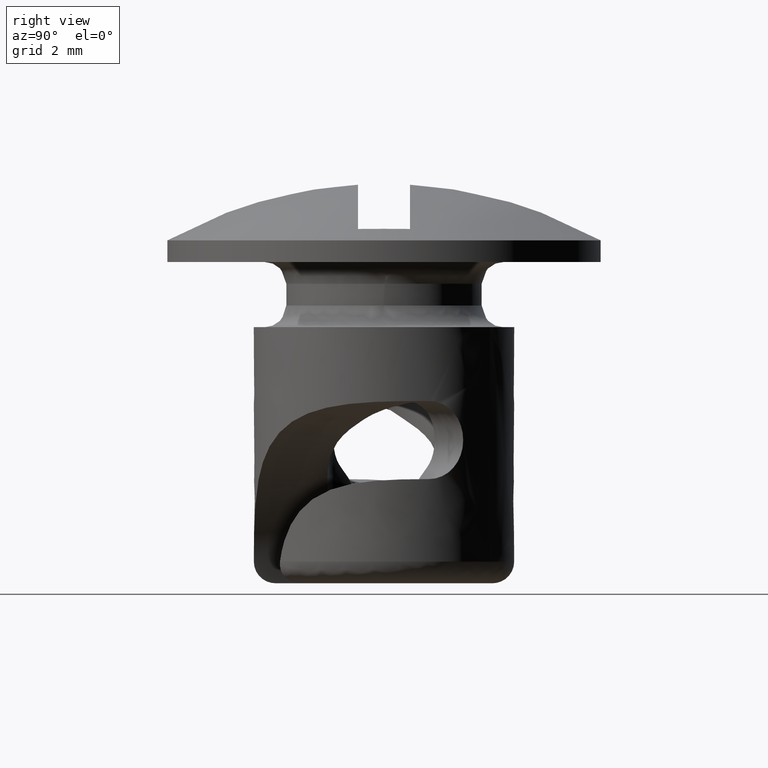
[diagram: clean part render]
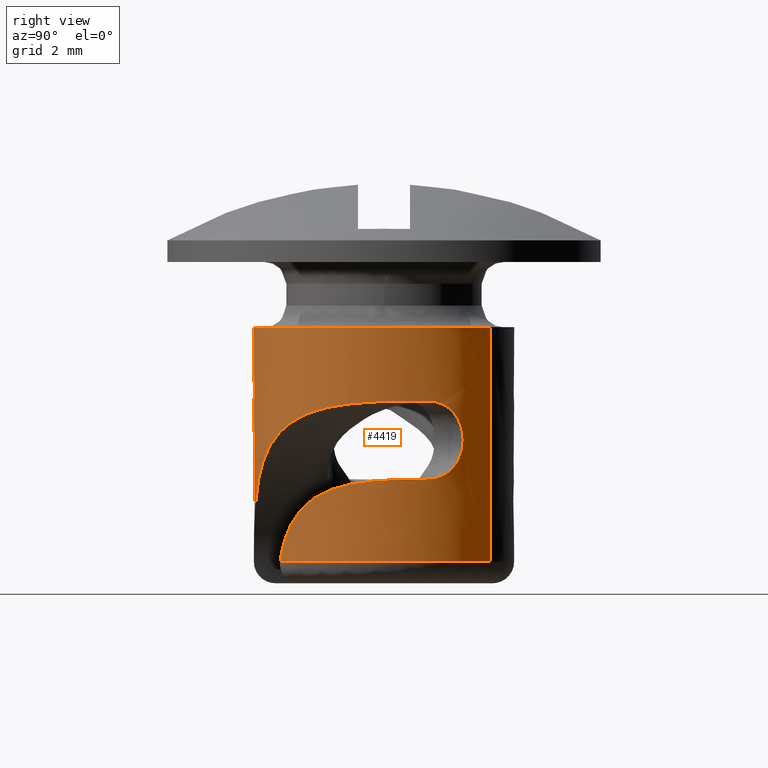
[diagram: same view with one face highlighted and labeled with its STEP entity id]
A machine part, right view. The second image highlights one B-rep face of the part: STEP entity #4419.
In plain terms, the highlighted face is a freeform B-spline surface patch.
Its self-contained STEP definition (entity closure, byte-faithful):
#1559=CARTESIAN_POINT('',(2.819077636768695,1.026061049781646,-5.0));
#1560=VERTEX_POINT('',#1559);
#3477=CARTESIAN_POINT('',(2.822162057853675,1.014812978951636,-3.200050929031310));
#3478=VERTEX_POINT('',#3477);
#3479=CARTESIAN_POINT('',(2.819077636768695,1.026061049781646,-5.0));
#3480=CARTESIAN_POINT('',(2.805089707556622,1.064494751141424,-5.000001608500657));
#3481=CARTESIAN_POINT('',(2.771323841835470,1.151126967242520,-4.993702264664626));
#3482=CARTESIAN_POINT('',(2.716545788220696,1.274219728714892,-4.963271549040200));
#3483=CARTESIAN_POINT('',(2.651683299628141,1.404301030033810,-4.904979574818277));
#3484=CARTESIAN_POINT('',(2.592902173878853,1.510045261881668,-4.830684506612701));
#3485=CARTESIAN_POINT('',(2.551700123374129,1.577879598927982,-4.763013896567219));
#3486=CARTESIAN_POINT('',(2.514877161120972,1.636150239348090,-4.695223108397808));
#3487=CARTESIAN_POINT('',(2.467353126969232,1.708273305771514,-4.592337323628366));
#3488=CARTESIAN_POINT('',(2.420012824364833,1.774445168648228,-4.440400902279741));
#3489=CARTESIAN_POINT('',(2.395461050712548,1.806758345195512,-4.304623579328469));
#3490=CARTESIAN_POINT('',(2.383877158495853,1.821548287059766,-4.198364986908852));
#3491=CARTESIAN_POINT('',(2.378625827753777,1.827914824030106,-4.071884917941570));
#3492=CARTESIAN_POINT('',(2.388618294993632,1.815657933500104,-3.938149895239259));
#3493=CARTESIAN_POINT('',(2.411518387104773,1.785551417569477,-3.805692670379122));
#3494=CARTESIAN_POINT('',(2.437534006666094,1.750046207625077,-3.702856912495972));
#3495=CARTESIAN_POINT('',(2.479227720912613,1.690320456124905,-3.581475407610075));
#3496=CARTESIAN_POINT('',(2.516273118512928,1.634157486421815,-3.501381435869568));
#3497=CARTESIAN_POINT('',(2.567647802242197,1.552360778452465,-3.408705698739099));
#3498=CARTESIAN_POINT('',(2.612988632348995,1.475087458297879,-3.341130640104060));
#3499=CARTESIAN_POINT('',(2.674711552363569,1.358057497476310,-3.272573092795271));
#3500=CARTESIAN_POINT('',(2.726640417651378,1.250618634921457,-3.229756567736855));
#3501=CARTESIAN_POINT('',(2.777595710894450,1.133198959310370,-3.204214074684800));
#3502=CARTESIAN_POINT('',(2.808324446855738,1.053297822363762,-3.199520065333239));
#3503=CARTESIAN_POINT('',(2.822162057853675,1.014812978951636,-3.200050929031310));
#3504=B_SPLINE_CURVE_WITH_KNOTS('',3,(#3479,#3480,#3481,#3482,#3483,#3484,#3485,#3486,#3487,#3488,#3489,#3490,#3491,#3492,#3493,#3494,#3495,#3496,#3497,#3498,#3499,#3500,#3501,#3502,#3503),.UNSPECIFIED.,.F.,.U.,(4,1,1,1,1,1,1,1,1,1,1,1,1,1,1,1,1,1,1,1,1,1,4),(-0.000002334073199,0.122699478811012,0.278864347968155,0.412719390771784,0.591193776172163,0.702740166853619,0.725051060126712,0.881216531364857,1.104308379367514,1.238163332889884,1.305091684766867,1.427793136751901,1.617423336469361,1.706660025095906,1.840515090806797,1.952061157832615,2.130535898064169,2.152846803083478,2.353630053803587,2.465176417455990,2.599031681306262,2.732887251959749,2.855589061643720),.UNSPECIFIED.);
#3505=EDGE_CURVE('',#1560,#3478,#3504,.T.);
#3817=CARTESIAN_POINT('',(1.803708136351060,-2.397214416538705,-6.900000000000000));
#3818=VERTEX_POINT('',#3817);
#3819=CARTESIAN_POINT('',(2.819077636768695,1.026061049781646,-5.0));
#3820=CARTESIAN_POINT('',(2.886356603573274,0.841213734128820,-5.000000000000036));
#3821=CARTESIAN_POINT('',(2.934522483304091,0.652853246726990,-5.001579407789944));
#3822=CARTESIAN_POINT('',(2.979256139151775,0.365298164546832,-5.008225596421286));
#3823=CARTESIAN_POINT('',(2.989547928123367,0.268605432291502,-5.011196365280373));
#3824=CARTESIAN_POINT('',(2.997904499401628,0.122290783251686,-5.017444517269398));
#3825=CARTESIAN_POINT('',(2.999507915362322,0.073182875880846,-5.019836233912159));
#3826=CARTESIAN_POINT('',(3.000297524352672,-0.024864291798660,-5.025341262339212));
#3827=CARTESIAN_POINT('',(2.999489415344910,-0.073664599775390,-5.028445241819856));
#3828=CARTESIAN_POINT('',(2.989585544716179,-0.316527861716279,-5.046063818390142));
#3829=CARTESIAN_POINT('',(2.963014038963404,-0.507222868454152,-5.066642919591585));
#3830=CARTESIAN_POINT('',(2.907623242576440,-0.740285439081035,-5.108027236372723));
#3831=CARTESIAN_POINT('',(2.895429564977406,-0.786629617891571,-5.117102833234489));
#3832=CARTESIAN_POINT('',(2.868815224672079,-0.878747818306919,-5.137114471866052));
#3833=CARTESIAN_POINT('',(2.854335564874750,-0.924683641008671,-5.148096461775690));
#3834=CARTESIAN_POINT('',(2.808116929828628,-1.059983358285067,-5.183849358916186));
#3835=CARTESIAN_POINT('',(2.773593729029997,-1.147003528669873,-5.211420620454152));
#3836=CARTESIAN_POINT('',(2.698216136934144,-1.314560362586616,-5.275589184373430));
#3837=CARTESIAN_POINT('',(2.657357799096591,-1.395097124678617,-5.312181741426163));
#3838=CARTESIAN_POINT('',(2.592150484734753,-1.510866466441011,-5.375218391100979));
#3839=CARTESIAN_POINT('',(2.569664287447284,-1.548768247009039,-5.397695125064388));
#3840=CARTESIAN_POINT('',(2.524111362143262,-1.621949279300896,-5.445036843312888));
#3841=CARTESIAN_POINT('',(2.501055969677411,-1.657231384180050,-5.469882084717972));
#3842=CARTESIAN_POINT('',(2.431388940697128,-1.759299609428942,-5.548051656738539));
#3843=CARTESIAN_POINT('',(2.384276878307416,-1.822312950115050,-5.605004506428045));
#3844=CARTESIAN_POINT('',(2.313905965003131,-1.909774689661077,-5.698205305915302));
#3845=CARTESIAN_POINT('',(2.290498175043333,-1.937750899314416,-5.730568629494470));
#3846=CARTESIAN_POINT('',(2.243999605713607,-1.991413118172079,-5.797992734738725));
#3847=CARTESIAN_POINT('',(2.220820638779867,-2.017192649402142,-5.833196815526348));
#3848=CARTESIAN_POINT('',(2.107429358921045,-2.139277777208459,-6.014411494846266));
#3849=CARTESIAN_POINT('',(2.025546708879180,-2.214777402700954,-6.174311198092485));
#3850=CARTESIAN_POINT('',(1.940407054768486,-2.288083338220025,-6.392740767064073));
#3851=CARTESIAN_POINT('',(1.924217066557559,-2.301688327642082,-6.437460783887395));
#3852=CARTESIAN_POINT('',(1.894124773597189,-2.326514951355478,-6.527542543069951));
#3853=CARTESIAN_POINT('',(1.880163499401287,-2.337788469375825,-6.573041659788888));
#3854=CARTESIAN_POINT('',(1.841602327251384,-2.368455132860239,-6.710881092269755));
#3855=CARTESIAN_POINT('',(1.820318218523813,-2.384716685775133,-6.804557844307031));
#3856=CARTESIAN_POINT('',(1.803708136351060,-2.397214416538705,-6.900000000000000));
#3857=B_SPLINE_CURVE_WITH_KNOTS('',3,(#3819,#3820,#3821,#3822,#3823,#3824,#3825,#3826,#3827,#3828,#3829,#3830,#3831,#3832,#3833,#3834,#3835,#3836,#3837,#3838,#3839,#3840,#3841,#3842,#3843,#3844,#3845,#3846,#3847,#3848,#3849,#3850,#3851,#3852,#3853,#3854,#3855,#3856),.UNSPECIFIED.,.F.,.U.,(4,2,2,2,2,2,2,2,2,2,2,2,2,2,2,2,2,2,4),(0.0,0.125000000000000,0.187500000000001,0.218750000000001,0.250000000000001,0.375000000000001,0.406250000000001,0.437500000000001,0.500000000000002,0.562500000000002,0.593750000000002,0.625000000000002,0.687500000000002,0.718750000000002,0.750000000000002,0.875000000000001,0.906250000000001,0.937500000000001,1.0),.UNSPECIFIED.);
#3858=EDGE_CURVE('',#1560,#3818,#3857,.T.);
#3933=CARTESIAN_POINT('',(1.743878512532106,2.441083311468252,-6.899999999999999));
#3934=VERTEX_POINT('',#3933);
#3948=CARTESIAN_POINT('',(1.803708136351057,-2.397214416538704,-6.900000000000000));
#3949=CARTESIAN_POINT('',(3.555889252561384,-1.078841177221830,-6.900000000000000));
#3950=CARTESIAN_POINT('',(2.831638270195144,0.990870681151811,-6.900000000000000));
#3951=CARTESIAN_POINT('',(2.517581247775023,1.888360031300522,-6.900000000000000));
#3952=CARTESIAN_POINT('',(1.743878512532107,2.441083311468252,-6.900000000000000));
#3960=(BOUNDED_CURVE()B_SPLINE_CURVE(2,(#3948,#3949,#3950,#3951,#3952),.UNSPECIFIED.,.F.,.U.)B_SPLINE_CURVE_WITH_KNOTS((3,2,3),(0.0,0.500000000000000,0.743372198286856),.UNSPECIFIED.)CURVE()GEOMETRIC_REPRESENTATION_ITEM()RATIONAL_B_SPLINE_CURVE((1.0,0.807331664785345,1.0,0.906219767437081,0.903733540292923))REPRESENTATION_ITEM(''));
#3961=EDGE_CURVE('',#3818,#3934,#3960,.T.);
#4045=CARTESIAN_POINT('',(3.0,0.0,-1.500000000000055));
#4046=VERTEX_POINT('',#4045);
#4047=CARTESIAN_POINT('',(1.743877725871815,2.441083873447854,-1.500000000000055));
#4048=VERTEX_POINT('',#4047);
#4049=CARTESIAN_POINT('',(3.0,0.0,-1.500000000000055));
#4050=CARTESIAN_POINT('',(2.999999999999953,1.543726892538668,-1.500000000000055));
#4051=CARTESIAN_POINT('',(1.743877725871815,2.441083873447854,-1.500000000000055));
#4059=(BOUNDED_CURVE()B_SPLINE_CURVE(2,(#4049,#4050,#4051),.UNSPECIFIED.,.F.,.U.)B_SPLINE_CURVE_WITH_KNOTS((3,3),(0.0,0.149965649778533),.UNSPECIFIED.)CURVE()GEOMETRIC_REPRESENTATION_ITEM()RATIONAL_B_SPLINE_CURVE((1.0,0.824304312499658,0.859395168513515))REPRESENTATION_ITEM(''));
#4060=EDGE_CURVE('',#4046,#4048,#4059,.T.);
#4079=CARTESIAN_POINT('',(-1.743877725871815,-2.441083873447854,-1.500000000000056));
#4080=VERTEX_POINT('',#4079);
#4094=CARTESIAN_POINT('',(-1.743877725871815,-2.441083873447854,-1.500000000000056));
#4095=CARTESIAN_POINT('',(-0.961505703513444,-2.999999999999880,-1.500000000000056));
#4096=CARTESIAN_POINT('',(7.163261E-014,-2.999999999999901,-1.500000000000056));
#4097=CARTESIAN_POINT('',(3.000000000000025,-2.999999999999966,-1.500000000000055));
#4098=CARTESIAN_POINT('',(3.0,0.0,-1.500000000000055));
#4106=(BOUNDED_CURVE()B_SPLINE_CURVE(2,(#4094,#4095,#4096,#4097,#4098),.UNSPECIFIED.,.F.,.U.)B_SPLINE_CURVE_WITH_KNOTS((3,2,3),(0.649965649778533,0.750000000000000,1.0),.UNSPECIFIED.)CURVE()GEOMETRIC_REPRESENTATION_ITEM()RATIONAL_B_SPLINE_CURVE((0.859395168513515,0.882802468686890,1.0,0.707106781186548,1.0))REPRESENTATION_ITEM(''));
#4107=EDGE_CURVE('',#4080,#4046,#4106,.T.);
#4318=CARTESIAN_POINT('',(-1.743878526417173,-2.441083301548938,-7.034999999999999));
#4319=CARTESIAN_POINT('',(0.697204775131765,-4.184961827966111,-7.034999999999999));
#4320=CARTESIAN_POINT('',(2.441083301548938,-1.743878526417173,-7.034999999999999));
#4321=CARTESIAN_POINT('',(4.184961827966111,0.697204775131765,-7.034999999999999));
#4322=CARTESIAN_POINT('',(1.743878526417173,2.441083301548938,-7.034999999999999));
#4323=CARTESIAN_POINT('',(-1.743878526417173,-2.441083301548938,-1.361625000000055));
#4324=CARTESIAN_POINT('',(0.697204775131765,-4.184961827966111,-1.361625000000055));
#4325=CARTESIAN_POINT('',(2.441083301548938,-1.743878526417173,-1.361625000000055));
#4326=CARTESIAN_POINT('',(4.184961827966111,0.697204775131765,-1.361625000000055));
#4327=CARTESIAN_POINT('',(1.743878526417173,2.441083301548938,-1.361625000000055));
#4335=(BOUNDED_SURFACE()B_SPLINE_SURFACE(2,1,((#4318,#4323),(#4319,#4324),(#4320,#4325),(#4321,#4326),(#4322,#4327)),.UNSPECIFIED.,.F.,.F.,.U.)B_SPLINE_SURFACE_WITH_KNOTS((3,2,3),(2,2),(0.0,4.970562748477139,9.941125496954278),(0.0,5.673374999999944),.UNSPECIFIED.)GEOMETRIC_REPRESENTATION_ITEM()RATIONAL_B_SPLINE_SURFACE(((1.0,1.0),(0.707106781186548,0.707106781186548),(1.0,1.0),(0.707106781186548,0.707106781186548),(1.0,1.0)))REPRESENTATION_ITEM('')SURFACE());
#4336=ORIENTED_EDGE('',*,*,#4107,.F.);
#4337=CARTESIAN_POINT('',(-1.743878512532106,-2.441083311468252,-6.899999999999999));
#4338=VERTEX_POINT('',#4337);
#4339=CARTESIAN_POINT('',(-1.743878512532106,-2.441083311468252,-6.899999999999999));
#4340=CARTESIAN_POINT('',(-1.743877725871815,-2.441083873447854,-1.500000000000056));
#4341=QUASI_UNIFORM_CURVE('',1,(#4339,#4340),.UNSPECIFIED.,.F.,.U.);
#4342=EDGE_CURVE('',#4338,#4080,#4341,.T.);
#4343=ORIENTED_EDGE('',*,*,#4342,.F.);
#4344=CARTESIAN_POINT('',(0.084513880760828,-2.998809331044365,-6.900000000000000));
#4345=VERTEX_POINT('',#4344);
#4346=CARTESIAN_POINT('',(-1.743878512532108,-2.441083311468253,-6.900000000000000));
#4347=CARTESIAN_POINT('',(-0.923410453437957,-3.027215137347076,-6.900000000000000));
#4348=CARTESIAN_POINT('',(0.084513880760826,-2.998809331044364,-6.900000000000000));
#4356=(BOUNDED_CURVE()B_SPLINE_CURVE(2,(#4346,#4347,#4348),.UNSPECIFIED.,.F.,.U.)B_SPLINE_CURVE_WITH_KNOTS((3,3),(0.743372198286852,1.0),.UNSPECIFIED.)CURVE()GEOMETRIC_REPRESENTATION_ITEM()RATIONAL_B_SPLINE_CURVE((0.903733540292922,0.901111897348261,1.0))REPRESENTATION_ITEM(''));
#4357=EDGE_CURVE('',#4338,#4345,#4356,.T.);
#4358=ORIENTED_EDGE('',*,*,#4357,.T.);
#4359=CARTESIAN_POINT('',(2.822162057853675,1.014812978951636,-3.200050929031310));
#4360=CARTESIAN_POINT('',(2.875856112348836,0.865265143103996,-3.200088019722176));
#4361=CARTESIAN_POINT('',(2.917051673132705,0.713422657907655,-3.200743004186850));
#4362=CARTESIAN_POINT('',(2.975427922177162,0.405337075507465,-3.203923010432609));
#4363=CARTESIAN_POINT('',(2.992607327426793,0.249093669236041,-3.206442102980794));
#4364=CARTESIAN_POINT('',(2.999735394837935,0.011330851011727,-3.213153793434045));
#4365=CARTESIAN_POINT('',(2.998952030606517,-0.068104431955525,-3.215886928658795));
#4366=CARTESIAN_POINT('',(2.991220736470682,-0.225354151890891,-3.222607419216372));
#4367=CARTESIAN_POINT('',(2.984284100199546,-0.303462786046158,-3.226602378149792));
#4368=CARTESIAN_POINT('',(2.954438573700145,-0.536224758828806,-3.241066453046298));
#4369=CARTESIAN_POINT('',(2.922542730367570,-0.689325257417642,-3.253965218412358));
#4370=CARTESIAN_POINT('',(2.856500234603436,-0.915609311440732,-3.281249180967058));
#4371=CARTESIAN_POINT('',(2.831336787662116,-0.990661878628460,-3.291725415248663));
#4372=CARTESIAN_POINT('',(2.775971816220372,-1.136634830036721,-3.315485230954196));
#4373=CARTESIAN_POINT('',(2.745684318730197,-1.207911716533011,-3.328803191879841));
#4374=CARTESIAN_POINT('',(2.647423547636809,-1.416659631467223,-3.373744406341297));
#4375=CARTESIAN_POINT('',(2.572075229240215,-1.549068379827970,-3.410321451825553));
#4376=CARTESIAN_POINT('',(2.445414293708030,-1.737328702749845,-3.478283855320797));
#4377=CARTESIAN_POINT('',(2.400667471892101,-1.798638102973226,-3.503279799933900));
#4378=CARTESIAN_POINT('',(2.308540487012882,-1.915517673955297,-3.557217441520223));
#4379=CARTESIAN_POINT('',(2.261073674816962,-1.971271897221461,-3.586194035547842));
#4380=CARTESIAN_POINT('',(2.115117811564925,-2.130885219885776,-3.679498272050187));
#4381=CARTESIAN_POINT('',(2.013082954080901,-2.227112832819078,-3.750187442462117));
#4382=CARTESIAN_POINT('',(1.855219237499745,-2.357375734254972,-3.870524845553103));
#4383=CARTESIAN_POINT('',(1.801699198744420,-2.398486494782225,-3.913121159863287));
#4384=CARTESIAN_POINT('',(1.695335344231038,-2.474878795000346,-4.001715864460127));
#4385=CARTESIAN_POINT('',(1.642259457085096,-2.510364055008644,-4.047882426416464));
#4386=CARTESIAN_POINT('',(1.483839979004725,-2.609461869698282,-4.192010701316138));
#4387=CARTESIAN_POINT('',(1.379306149480096,-2.665738946326369,-4.295588119762736));
#4388=CARTESIAN_POINT('',(1.225935935452649,-2.737994835438410,-4.462490916648305));
#4389=CARTESIAN_POINT('',(1.175594715019234,-2.759938992371656,-4.519838683677613));
#4390=CARTESIAN_POINT('',(1.077653980129830,-2.799686161330205,-4.636769181444888));
#4391=CARTESIAN_POINT('',(1.029898718034859,-2.817562767270724,-4.696519209970549));
#4392=CARTESIAN_POINT('',(0.890473701844873,-2.866022598199173,-4.879579496301058));
#4393=CARTESIAN_POINT('',(0.802634560492292,-2.891459750296393,-5.006687629530479));
#4394=CARTESIAN_POINT('',(0.679462369882968,-2.922000541619209,-5.205002151481348));
#4395=CARTESIAN_POINT('',(0.639838314599504,-2.930904808041608,-5.272385451665256));
#4396=CARTESIAN_POINT('',(0.563644669098669,-2.946544733937469,-5.409755569905443));
#4397=CARTESIAN_POINT('',(0.526993053949266,-2.953291497065842,-5.479926199667167));
#4398=CARTESIAN_POINT('',(0.423006566265977,-2.970645426171623,-5.692189593258513));
#4399=CARTESIAN_POINT('',(0.361317228347723,-2.978471273026417,-5.836495702580481));
#4400=CARTESIAN_POINT('',(0.253764331408737,-2.989614429484102,-6.130780027083236));
#4401=CARTESIAN_POINT('',(0.207900411353586,-2.992926809627867,-6.280758307729636));
#4402=CARTESIAN_POINT('',(0.133048135966136,-2.997237335206986,-6.586666678292248));
#4403=CARTESIAN_POINT('',(0.104054341967464,-2.998236659839892,-6.743180701552113));
#4404=CARTESIAN_POINT('',(0.084513880760828,-2.998809331044365,-6.900000000000000));
#4405=B_SPLINE_CURVE_WITH_KNOTS('',3,(#4359,#4360,#4361,#4362,#4363,#4364,#4365,#4366,#4367,#4368,#4369,#4370,#4371,#4372,#4373,#4374,#4375,#4376,#4377,#4378,#4379,#4380,#4381,#4382,#4383,#4384,#4385,#4386,#4387,#4388,#4389,#4390,#4391,#4392,#4393,#4394,#4395,#4396,#4397,#4398,#4399,#4400,#4401,#4402,#4403,#4404),.UNSPECIFIED.,.F.,.U.,(4,2,2,2,2,2,2,2,2,2,2,2,2,2,2,2,2,2,2,2,2,2,4),(0.0,0.062500000000000,0.124999999999999,0.156249999999999,0.187499999999999,0.249999999999999,0.281249999999999,0.312499999999999,0.374999999999999,0.406249999999999,0.437499999999999,0.499999999999999,0.531249999999999,0.562499999999999,0.624999999999999,0.656250000000000,0.687500000000000,0.750000000000000,0.781250000000000,0.812500000000000,0.875000000000000,0.937500000000000,1.0),.UNSPECIFIED.);
#4406=EDGE_CURVE('',#3478,#4345,#4405,.T.);
#4407=ORIENTED_EDGE('',*,*,#4406,.F.);
#4408=ORIENTED_EDGE('',*,*,#3505,.F.);
#4409=ORIENTED_EDGE('',*,*,#3858,.T.);
#4410=ORIENTED_EDGE('',*,*,#3961,.T.);
#4411=CARTESIAN_POINT('',(1.743878512532106,2.441083311468252,-6.899999999999999));
#4412=CARTESIAN_POINT('',(1.743877725871815,2.441083873447854,-1.500000000000055));
#4413=QUASI_UNIFORM_CURVE('',1,(#4411,#4412),.UNSPECIFIED.,.F.,.U.);
#4414=EDGE_CURVE('',#3934,#4048,#4413,.T.);
#4415=ORIENTED_EDGE('',*,*,#4414,.T.);
#4416=ORIENTED_EDGE('',*,*,#4060,.F.);
#4417=EDGE_LOOP('',(#4336,#4343,#4358,#4407,#4408,#4409,#4410,#4415,#4416));
#4418=FACE_OUTER_BOUND('',#4417,.T.);
#4419=ADVANCED_FACE('',(#4418),#4335,.T.);